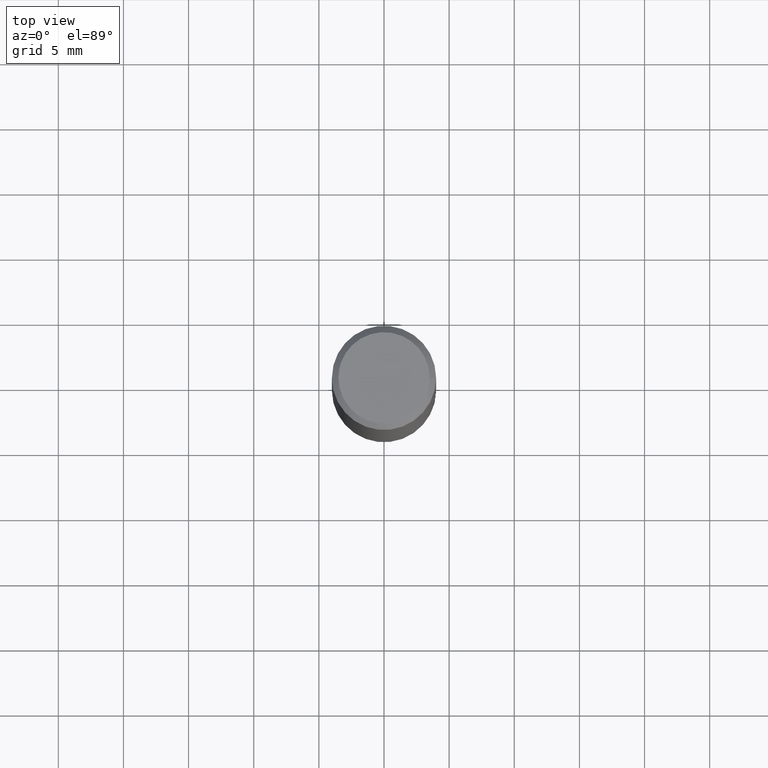
[diagram: clean part render]
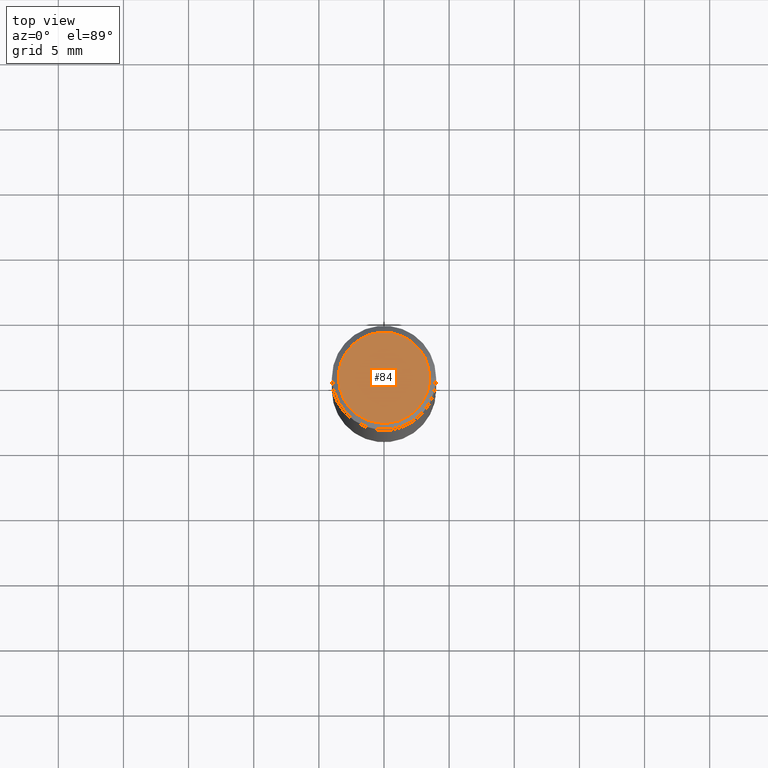
[diagram: same view with one face highlighted and labeled with its STEP entity id]
A machine part, top view. The second image highlights one B-rep face of the part: STEP entity #84.
In plain terms, the highlighted planar face has unit normal (0, 0, 1).
Its self-contained STEP definition (entity closure, byte-faithful):
#29=FACE_OUTER_BOUND('',#35,.T.);
#35=EDGE_LOOP('',(#66,#67));
#40=B_SPLINE_CURVE_WITH_KNOTS('',3,(#174,#175,#176,#177,#178,#179,#180,
#181,#182,#183,#184,#185,#186,#187,#188,#189,#190,#191,#192,#193,#194,#195),
 .UNSPECIFIED.,.F.,.F.,(4,2,2,2,2,2,2,2,2,2,4),(9.99999956626313E-7,0.0728933082065209,
0.145679835181092,0.279312765602998,0.411914353176092,0.544900310348418,
0.677848824480262,0.810905341006086,0.944640724719306,1.01702181769412,
1.08955497045244),.UNSPECIFIED.);
#41=B_SPLINE_CURVE_WITH_KNOTS('',3,(#196,#197,#198,#199,#200,#201,#202,
#203,#204,#205,#206,#207,#208,#209,#210,#211,#212,#213,#214,#215,#216,#217),
 .UNSPECIFIED.,.F.,.F.,(4,2,2,2,2,2,2,2,2,2,4),(1.00000000138878E-6,0.0727074412823273,
0.145261459495931,0.279316349619257,0.412690750677529,0.545956891313938,
0.679260564445767,0.812178949683233,0.946131141744621,1.01909156257802,
1.09215801736459),.UNSPECIFIED.);
#48=VERTEX_POINT('',#172);
#49=VERTEX_POINT('',#173);
#56=EDGE_CURVE('',#48,#49,#40,.T.);
#57=EDGE_CURVE('',#49,#48,#41,.T.);
#66=ORIENTED_EDGE('',*,*,#56,.T.);
#67=ORIENTED_EDGE('',*,*,#57,.T.);
#81=PLANE('',#95);
#84=ADVANCED_FACE('',(#29),#81,.T.);
#95=AXIS2_PLACEMENT_3D('',#171,#110,#111);
#110=DIRECTION('center_axis',(0.,0.,1.));
#111=DIRECTION('ref_axis',(1.,0.,0.));
#171=CARTESIAN_POINT('Origin',(-4.80000057601305,-4.80000057603258,55.));
#172=CARTESIAN_POINT('',(3.5,0.,55.));
#173=CARTESIAN_POINT('',(-3.5,0.,55.));
#174=CARTESIAN_POINT('Ctrl Pts',(3.5,-2.08166817117217E-16,55.));
#175=CARTESIAN_POINT('Ctrl Pts',(3.5,0.242974806164053,55.));
#176=CARTESIAN_POINT('Ctrl Pts',(3.47383428472649,0.486705104341955,55.));
#177=CARTESIAN_POINT('Ctrl Pts',(3.37326496683072,0.961860113207427,55.));
#178=CARTESIAN_POINT('Ctrl Pts',(3.29845652102034,1.19553932260184,55.));
#179=CARTESIAN_POINT('Ctrl Pts',(3.01800199087992,1.8289820367931,55.));
#180=CARTESIAN_POINT('Ctrl Pts',(2.75716581564111,2.20289698175356,55.));
#181=CARTESIAN_POINT('Ctrl Pts',(2.11206711395443,2.82597704878324,55.));
#182=CARTESIAN_POINT('Ctrl Pts',(1.72928765719694,3.07558529925453,55.0000000000001));
#183=CARTESIAN_POINT('Ctrl Pts',(0.898022418884165,3.41267577033778,55.0000000000001));
#184=CARTESIAN_POINT('Ctrl Pts',(0.449137718192335,3.50007858547292,55.));
#185=CARTESIAN_POINT('Ctrl Pts',(-0.449011260616497,3.49992143665332,55.));
#186=CARTESIAN_POINT('Ctrl Pts',(-0.898085462997445,3.41241076088353,55.0000000000001));
#187=CARTESIAN_POINT('Ctrl Pts',(-1.73078760346223,3.07518865955996,55.0000000000001));
#188=CARTESIAN_POINT('Ctrl Pts',(-2.1137835151472,2.82532242067028,55.));
#189=CARTESIAN_POINT('Ctrl Pts',(-2.75953541421206,2.19968022452363,55.));
#190=CARTESIAN_POINT('Ctrl Pts',(-3.02092157343844,1.82337171273479,55.0000000000001));
#191=CARTESIAN_POINT('Ctrl Pts',(-3.30034828038063,1.190416832168,55.0000000000001));
#192=CARTESIAN_POINT('Ctrl Pts',(-3.3746671070178,0.958478367467301,55.0000000000001));
#193=CARTESIAN_POINT('Ctrl Pts',(-3.47449726331823,0.484677860407673,55.0000000000001));
#194=CARTESIAN_POINT('Ctrl Pts',(-3.5,0.242355248614225,55.));
#195=CARTESIAN_POINT('Ctrl Pts',(-3.5,-4.16333634234434E-16,55.));
#196=CARTESIAN_POINT('Ctrl Pts',(-3.5,-1.38777878078145E-16,55.));
#197=CARTESIAN_POINT('Ctrl Pts',(-3.50000000000001,-0.242355248614015,55.));
#198=CARTESIAN_POINT('Ctrl Pts',(-3.47449726331835,-0.484677860407254,55.));
#199=CARTESIAN_POINT('Ctrl Pts',(-3.37466710701789,-0.958478367467172,55.));
#200=CARTESIAN_POINT('Ctrl Pts',(-3.30034828038075,-1.19041683216781,55.));
#201=CARTESIAN_POINT('Ctrl Pts',(-3.02092157343841,-1.82337171273504,55.));
#202=CARTESIAN_POINT('Ctrl Pts',(-2.75953541421187,-2.19968022452377,55.0000000000001));
#203=CARTESIAN_POINT('Ctrl Pts',(-2.11378351514717,-2.82532242067016,55.0000000000001));
#204=CARTESIAN_POINT('Ctrl Pts',(-1.73078760346226,-3.07518865955995,55.));
#205=CARTESIAN_POINT('Ctrl Pts',(-0.898085462997455,-3.41241076088354,55.));
#206=CARTESIAN_POINT('Ctrl Pts',(-0.44901126061648,-3.49992143665332,55.));
#207=CARTESIAN_POINT('Ctrl Pts',(0.449137718192284,-3.50007858547293,55.));
#208=CARTESIAN_POINT('Ctrl Pts',(0.898022418884136,-3.4126757703378,55.));
#209=CARTESIAN_POINT('Ctrl Pts',(1.72928765719696,-3.07558529925452,55.));
#210=CARTESIAN_POINT('Ctrl Pts',(2.11206711395446,-2.82597704878318,55.0000000000001));
#211=CARTESIAN_POINT('Ctrl Pts',(2.75716581564114,-2.2028969817535,55.0000000000001));
#212=CARTESIAN_POINT('Ctrl Pts',(3.01800199087992,-1.82898203679303,55.0000000000001));
#213=CARTESIAN_POINT('Ctrl Pts',(3.29845652102033,-1.19553932260183,55.0000000000001));
#214=CARTESIAN_POINT('Ctrl Pts',(3.37326496683069,-0.961860113207375,55.0000000000001));
#215=CARTESIAN_POINT('Ctrl Pts',(3.47383428472632,-0.486705104342487,55.0000000000001));
#216=CARTESIAN_POINT('Ctrl Pts',(3.5,-0.242974806164282,55.));
#217=CARTESIAN_POINT('Ctrl Pts',(3.5,1.17961196366423E-15,55.));